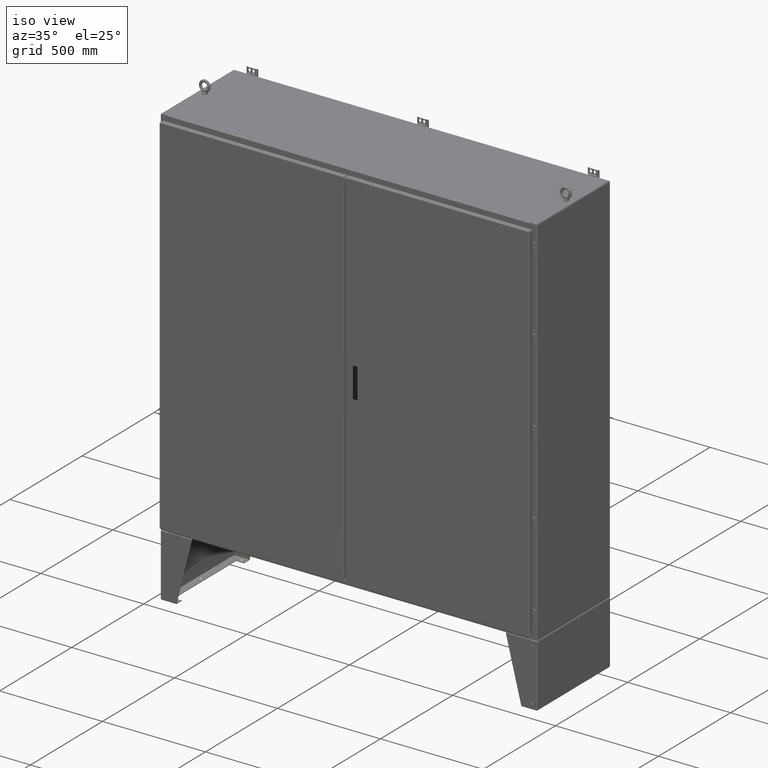
[diagram: clean part render]
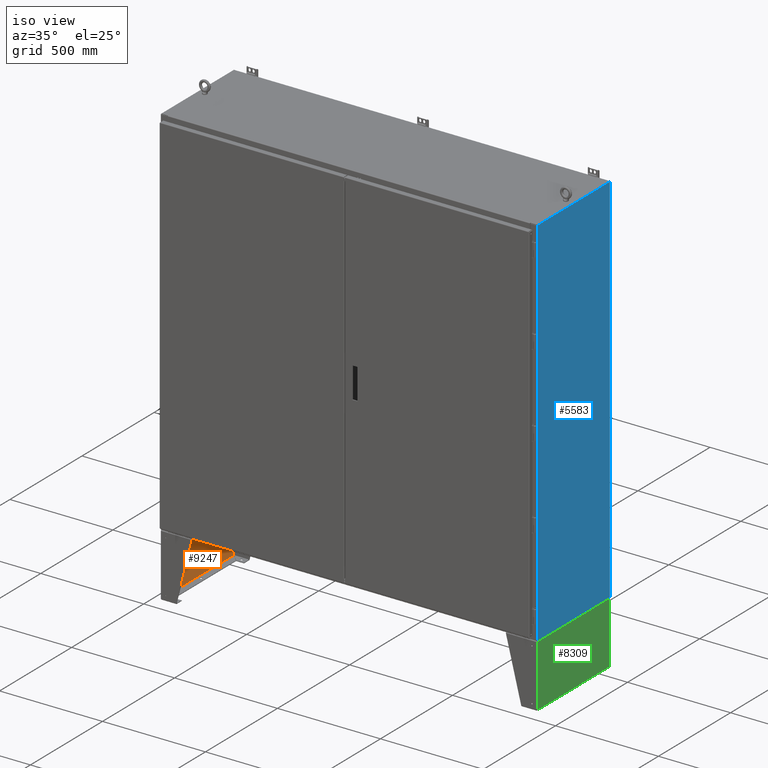
[diagram: same view with three faces highlighted in distinct colors, each labeled with its STEP entity id]
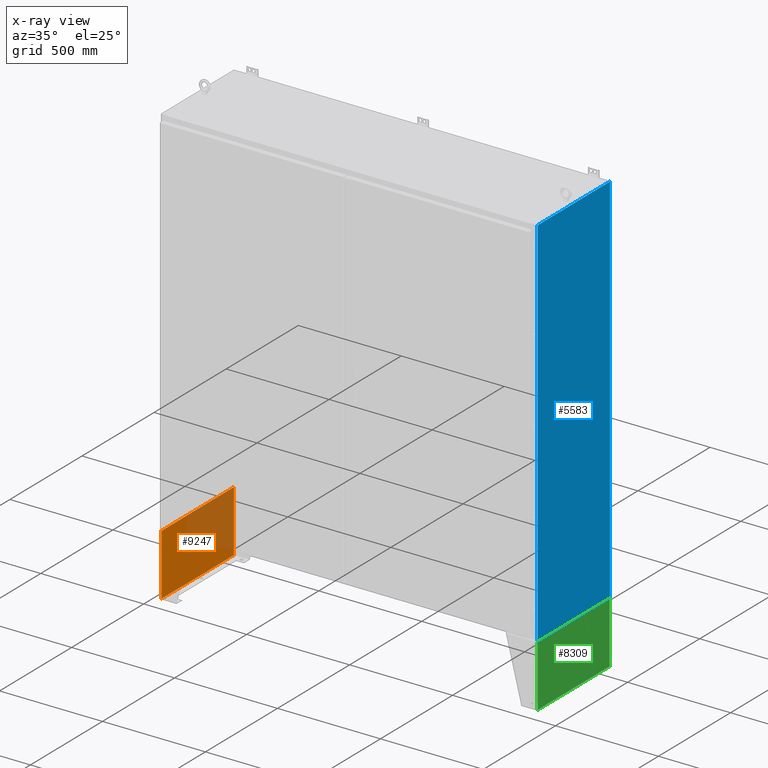
[diagram: x-ray of the same camera — body ghosted, the three highlighted faces saturated]
A machine part, iso view with three faces highlighted in distinct colors.
The next image is the same camera in x-ray (body ghosted, the three faces saturated) — at least one of them is partly hidden behind the body in this view.
Their STEP definitions:

[orange] entity #9247 — the highlighted planar face has unit normal (-1, 0, -0).
#9247 = ADVANCED_FACE( '', ( #18996 ), #18997, .F. );
#18996 = FACE_OUTER_BOUND( '', #38541, .T. );
#18997 = PLANE( '', #38542 );
#38541 = EDGE_LOOP( '', ( #69811, #69812, #69813, #69814, #69815, #69816, #69817, #69818, #69819, #69820, #69821, #69822, #69823, #69824, #69825, #69826, #69827, #69828, #69829, #69830, #69831, #69832, #69833, #69834, #69835, #69836, #69837, #69838 ) );
#38542 = AXIS2_PLACEMENT_3D( '', #69839, #69840, #69841 );
#69811 = ORIENTED_EDGE( '', *, *, #81860, .T. );
#69812 = ORIENTED_EDGE( '', *, *, #79345, .F. );
#69813 = ORIENTED_EDGE( '', *, *, #79488, .T. );
#69814 = ORIENTED_EDGE( '', *, *, #80873, .F. );
#69815 = ORIENTED_EDGE( '', *, *, #74939, .T. );
#69816 = ORIENTED_EDGE( '', *, *, #76959, .F. );
#69817 = ORIENTED_EDGE( '', *, *, #81586, .F. );
#69818 = ORIENTED_EDGE( '', *, *, #81699, .F. );
#69819 = ORIENTED_EDGE( '', *, *, #80778, .T. );
#69820 = ORIENTED_EDGE( '', *, *, #80290, .F. );
#69821 = ORIENTED_EDGE( '', *, *, #79211, .T. );
#69822 = ORIENTED_EDGE( '', *, *, #75995, .F. );
#69823 = ORIENTED_EDGE( '', *, *, #79574, .T. );
#69824 = ORIENTED_EDGE( '', *, *, #81141, .F. );
#69825 = ORIENTED_EDGE( '', *, *, #76453, .T. );
#69826 = ORIENTED_EDGE( '', *, *, #74127, .F. );
#69827 = ORIENTED_EDGE( '', *, *, #81013, .T. );
#69828 = ORIENTED_EDGE( '', *, *, #73482, .F. );
#69829 = ORIENTED_EDGE( '', *, *, #79521, .T. );
#69830 = ORIENTED_EDGE( '', *, *, #75222, .F. );
#69831 = ORIENTED_EDGE( '', *, *, #73372, .F. );
#69832 = ORIENTED_EDGE( '', *, *, #79473, .F. );
#69833 = ORIENTED_EDGE( '', *, *, #82030, .T. );
#69834 = ORIENTED_EDGE( '', *, *, #77314, .F. );
#69835 = ORIENTED_EDGE( '', *, *, #77387, .T. );
#69836 = ORIENTED_EDGE( '', *, *, #77721, .F. );
#69837 = ORIENTED_EDGE( '', *, *, #81914, .T. );
#69838 = ORIENTED_EDGE( '', *, *, #80507, .F. );
#69839 = CARTESIAN_POINT( '', ( 0.000000000000000, 2.66700000000000, 0.000000000000000 ) );
#69840 = DIRECTION( '', ( 0.000000000000000, -1.00000000000000, 0.000000000000000 ) );
#69841 = DIRECTION( '', ( 0.000000000000000, 0.000000000000000, -1.00000000000000 ) );
#73372 = EDGE_CURVE( '', #83548, #83551, #83552, .T. );
#73482 = EDGE_CURVE( '', #83739, #83741, #83742, .T. );
#74127 = EDGE_CURVE( '', #84863, #84860, #84865, .T. );
#74939 = EDGE_CURVE( '', #86225, #86229, #86231, .T. );
#75222 = EDGE_CURVE( '', #83551, #86438, #86692, .T. );
#75995 = EDGE_CURVE( '', #87946, #87949, #87950, .T. );
#76453 = EDGE_CURVE( '', #84388, #84860, #88679, .T. );
#76959 = EDGE_CURVE( '', #89442, #86229, #89444, .T. );
#77314 = EDGE_CURVE( '', #90001, #85770, #90003, .T. );
#77387 = EDGE_CURVE( '', #90001, #90112, #90114, .T. );
#77721 = EDGE_CURVE( '', #90592, #90112, #90594, .T. );
#79211 = EDGE_CURVE( '', #87435, #87949, #92738, .T. );
#79345 = EDGE_CURVE( '', #91284, #88640, #92919, .T. );
#79473 = EDGE_CURVE( '', #87773, #83548, #93086, .T. );
#79488 = EDGE_CURVE( '', #91284, #93104, #93106, .T. );
#79521 = EDGE_CURVE( '', #83739, #86438, #93152, .T. );
#79574 = EDGE_CURVE( '', #87946, #93221, #93223, .T. );
#80290 = EDGE_CURVE( '', #87435, #93896, #94144, .T. );
#80507 = EDGE_CURVE( '', #85262, #94423, #94424, .T. );
#80778 = EDGE_CURVE( '', #94751, #93896, #94753, .T. );
#80873 = EDGE_CURVE( '', #86225, #93104, #94865, .T. );
#81013 = EDGE_CURVE( '', #84863, #83741, #95024, .T. );
#81141 = EDGE_CURVE( '', #84388, #93221, #95170, .T. );
#81586 = EDGE_CURVE( '', #82769, #89442, #95699, .F. );
#81699 = EDGE_CURVE( '', #94751, #82769, #95822, .T. );
#81860 = EDGE_CURVE( '', #85262, #88640, #95997, .T. );
#81914 = EDGE_CURVE( '', #90592, #94423, #96052, .T. );
#82030 = EDGE_CURVE( '', #87773, #85770, #96174, .T. );
#82769 = VERTEX_POINT( '', #97503 );
#83548 = VERTEX_POINT( '', #99417 );
#83551 = VERTEX_POINT( '', #99429 );
#83552 = LINE( '', #99430, #99431 );
#83739 = VERTEX_POINT( '', #99761 );
#83741 = VERTEX_POINT( '', #99776 );
#83742 = LINE( '', #99777, #99778 );
#84388 = VERTEX_POINT( '', #101597 );
#84860 = VERTEX_POINT( '', #102967 );
#84863 = VERTEX_POINT( '', #102984 );
#84865 = LINE( '', #102999, #103000 );
#85262 = VERTEX_POINT( '', #104098 );
#85770 = VERTEX_POINT( '', #105535 );
#86225 = VERTEX_POINT( '', #106833 );
#86229 = VERTEX_POINT( '', #106838 );
#86231 = CIRCLE( '', #106841, 1.58750000000000 );
#86438 = VERTEX_POINT( '', #107422 );
#86692 = LINE( '', #108038, #108039 );
#87435 = VERTEX_POINT( '', #110052 );
#87773 = VERTEX_POINT( '', #110918 );
#87946 = VERTEX_POINT( '', #111306 );
#87949 = VERTEX_POINT( '', #111322 );
#87950 = LINE( '', #111323, #111324 );
#88640 = VERTEX_POINT( '', #113261 );
#88679 = CIRCLE( '', #113415, 1.58750000000000 );
#89442 = VERTEX_POINT( '', #115378 );
#89444 = LINE( '', #115380, #115381 );
#90001 = VERTEX_POINT( '', #117501 );
#90003 = LINE( '', #117516, #117517 );
#90112 = VERTEX_POINT( '', #117725 );
#90114 = CIRCLE( '', #117728, 1.58750000000000 );
#90592 = VERTEX_POINT( '', #118929 );
#90594 = LINE( '', #118944, #118945 );
#91284 = VERTEX_POINT( '', #121197 );
#92738 = CIRCLE( '', #125694, 1.58750000000000 );
#92919 = LINE( '', #126225, #126226 );
#93086 = LINE( '', #126663, #126664 );
#93104 = VERTEX_POINT( '', #126691 );
#93106 = CIRCLE( '', #126694, 1.58750000000000 );
#93152 = CIRCLE( '', #126878, 1.58750000000000 );
#93221 = VERTEX_POINT( '', #127029 );
#93223 = CIRCLE( '', #127032, 1.58750000000000 );
#93896 = VERTEX_POINT( '', #128665 );
#94144 = LINE( '', #129310, #129311 );
#94423 = VERTEX_POINT( '', #130106 );
#94424 = LINE( '', #130107, #130108 );
#94751 = VERTEX_POINT( '', #130991 );
#94753 = CIRCLE( '', #130994, 1.58750000000000 );
#94865 = LINE( '', #131329, #131330 );
#95024 = CIRCLE( '', #131789, 1.58750000000000 );
#95170 = LINE( '', #132196, #132197 );
#95699 = LINE( '', #134015, #134016 );
#95822 = LINE( '', #134232, #134233 );
#95997 = CIRCLE( '', #134571, 1.58750000000000 );
#96052 = CIRCLE( '', #134663, 1.58750000000000 );
#96174 = CIRCLE( '', #134884, 1.58750000000000 );
#97503 = CARTESIAN_POINT( '', ( 250.520200000000, 2.66700000000000, 148.920200000000 ) );
#99417 = CARTESIAN_POINT( '', ( -250.520200000000, 2.66700000000000, -148.920200000000 ) );
#99429 = CARTESIAN_POINT( '', ( 250.520200000000, 2.66700000000000, -148.920200000000 ) );
#99430 = CARTESIAN_POINT( '', ( -250.520200000000, 2.66700000000000, -148.920200000000 ) );
#99431 = VECTOR( '', #135852, 1000.00000000000 );
#99761 = CARTESIAN_POINT( '', ( 250.520200000000, 2.66700000000000, -146.695782502592 ) );
#99776 = CARTESIAN_POINT( '', ( 250.520200000000, 2.66700000000000, -142.499918163241 ) );
#99777 = CARTESIAN_POINT( '', ( 250.520200000000, 2.66700000000000, -152.400000000000 ) );
#99778 = VECTOR( '', #135934, 1000.00000000000 );
#101597 = CARTESIAN_POINT( '', ( 250.520200000000, 2.66700000000000, -133.995782502592 ) );
#102967 = CARTESIAN_POINT( '', ( 250.520200000000, 2.66700000000000, -136.149918163241 ) );
#102984 = CARTESIAN_POINT( '', ( 250.520200000000, 2.66700000000000, -140.345782502592 ) );
#102999 = CARTESIAN_POINT( '', ( 250.520200000000, 2.66700000000000, -152.400000000000 ) );
#103000 = VECTOR( '', #136383, 1000.00000000000 );
#104098 = CARTESIAN_POINT( '', ( -250.520200000000, 2.66700000000000, 133.995782502592 ) );
#105535 = CARTESIAN_POINT( '', ( -250.520200000000, 2.66700000000000, -146.695782502592 ) );
#106833 = CARTESIAN_POINT( '', ( -250.520200000000, 2.66700000000000, 146.695782502592 ) );
#106838 = CARTESIAN_POINT( '', ( -250.520200000000, 2.66700000000000, 148.849918163241 ) );
#106841 = AXIS2_PLACEMENT_3D( '', #136860, #136861, #136862 );
#107422 = CARTESIAN_POINT( '', ( 250.520200000000, 2.66700000000000, -148.849918163241 ) );
#108038 = CARTESIAN_POINT( '', ( 250.520200000000, 2.66700000000000, -152.400000000000 ) );
#108039 = VECTOR( '', #137041, 1000.00000000000 );
#110052 = CARTESIAN_POINT( '', ( 250.520200000000, 2.66700000000000, 142.499918163241 ) );
#110918 = CARTESIAN_POINT( '', ( -250.520200000000, 2.66700000000000, -148.849918163241 ) );
#111306 = CARTESIAN_POINT( '', ( 250.520200000000, 2.66700000000000, 136.149918163241 ) );
#111322 = CARTESIAN_POINT( '', ( 250.520200000000, 2.66700000000000, 140.345782502592 ) );
#111323 = CARTESIAN_POINT( '', ( 250.520200000000, 2.66700000000000, -152.400000000000 ) );
#111324 = VECTOR( '', #137473, 1000.00000000000 );
#113261 = CARTESIAN_POINT( '', ( -250.520200000000, 2.66700000000000, 136.149918163241 ) );
#113415 = AXIS2_PLACEMENT_3D( '', #137735, #137736, #137737 );
#115378 = CARTESIAN_POINT( '', ( -250.520200000000, 2.66700000000000, 148.920200000000 ) );
#115380 = CARTESIAN_POINT( '', ( -250.520200000000, 2.66700000000000, 152.400000000000 ) );
#115381 = VECTOR( '', #138054, 1000.00000000000 );
#117501 = CARTESIAN_POINT( '', ( -250.520200000000, 2.66700000000000, -142.499918163241 ) );
#117516 = CARTESIAN_POINT( '', ( -250.520200000000, 2.66700000000000, 152.400000000000 ) );
#117517 = VECTOR( '', #138136, 1000.00000000000 );
#117725 = CARTESIAN_POINT( '', ( -250.520200000000, 2.66700000000000, -140.345782502592 ) );
#117728 = AXIS2_PLACEMENT_3D( '', #138189, #138190, #138191 );
#118929 = CARTESIAN_POINT( '', ( -250.520200000000, 2.66700000000000, -136.149918163241 ) );
#118944 = CARTESIAN_POINT( '', ( -250.520200000000, 2.66700000000000, 152.400000000000 ) );
#118945 = VECTOR( '', #138409, 1000.00000000000 );
#121197 = CARTESIAN_POINT( '', ( -250.520200000000, 2.66700000000000, 140.345782502592 ) );
#125694 = AXIS2_PLACEMENT_3D( '', #139176, #139177, #139178 );
#126225 = CARTESIAN_POINT( '', ( -250.520200000000, 2.66700000000000, 152.400000000000 ) );
#126226 = VECTOR( '', #139253, 1000.00000000000 );
#126663 = CARTESIAN_POINT( '', ( -250.520200000000, 2.66700000000000, 152.400000000000 ) );
#126664 = VECTOR( '', #139309, 1000.00000000000 );
#126691 = CARTESIAN_POINT( '', ( -250.520200000000, 2.66700000000000, 142.499918163241 ) );
#126694 = AXIS2_PLACEMENT_3D( '', #139320, #139321, #139322 );
#126878 = AXIS2_PLACEMENT_3D( '', #139338, #139339, #139340 );
#127029 = CARTESIAN_POINT( '', ( 250.520200000000, 2.66700000000000, 133.995782502592 ) );
#127032 = AXIS2_PLACEMENT_3D( '', #139393, #139394, #139395 );
#128665 = CARTESIAN_POINT( '', ( 250.520200000000, 2.66700000000000, 146.695782502592 ) );
#129310 = CARTESIAN_POINT( '', ( 250.520200000000, 2.66700000000000, -152.400000000000 ) );
#129311 = VECTOR( '', #139815, 1000.00000000000 );
#130106 = CARTESIAN_POINT( '', ( -250.520200000000, 2.66700000000000, -133.995782502592 ) );
#130107 = CARTESIAN_POINT( '', ( -250.520200000000, 2.66700000000000, 152.400000000000 ) );
#130108 = VECTOR( '', #139935, 1000.00000000000 );
#130991 = CARTESIAN_POINT( '', ( 250.520200000000, 2.66700000000000, 148.849918163241 ) );
#130994 = AXIS2_PLACEMENT_3D( '', #140061, #140062, #140063 );
#131329 = CARTESIAN_POINT( '', ( -250.520200000000, 2.66700000000000, 152.400000000000 ) );
#131330 = VECTOR( '', #140107, 1000.00000000000 );
#131789 = AXIS2_PLACEMENT_3D( '', #140159, #140160, #140161 );
#132196 = CARTESIAN_POINT( '', ( 250.520200000000, 2.66700000000000, -152.400000000000 ) );
#132197 = VECTOR( '', #140213, 1000.00000000000 );
#134015 = CARTESIAN_POINT( '', ( 250.520200000000, 2.66700000000000, 148.920200000000 ) );
#134016 = VECTOR( '', #140357, 1000.00000000000 );
#134232 = CARTESIAN_POINT( '', ( 250.520200000000, 2.66700000000000, -152.400000000000 ) );
#134233 = VECTOR( '', #140401, 1000.00000000000 );
#134571 = AXIS2_PLACEMENT_3D( '', #140454, #140455, #140456 );
#134663 = AXIS2_PLACEMENT_3D( '', #140474, #140475, #140476 );
#134884 = AXIS2_PLACEMENT_3D( '', #140522, #140523, #140524 );
#135852 = DIRECTION( '', ( 1.00000000000000, 0.000000000000000, 0.000000000000000 ) );
#135934 = DIRECTION( '', ( 0.000000000000000, 0.000000000000000, 1.00000000000000 ) );
#136383 = DIRECTION( '', ( 0.000000000000000, 0.000000000000000, 1.00000000000000 ) );
#136860 = CARTESIAN_POINT( '', ( -251.686425166458, 2.66700000000000, 147.772850332916 ) );
#136861 = DIRECTION( '', ( 0.000000000000000, -1.00000000000000, 0.000000000000000 ) );
#136862 = DIRECTION( '', ( -1.00000000000000, 0.000000000000000, 0.000000000000000 ) );
#137041 = DIRECTION( '', ( 0.000000000000000, 0.000000000000000, 1.00000000000000 ) );
#137473 = DIRECTION( '', ( 0.000000000000000, 0.000000000000000, 1.00000000000000 ) );
#137735 = CARTESIAN_POINT( '', ( 251.686425166458, 2.66700000000000, -135.072850332916 ) );
#137736 = DIRECTION( '', ( 0.000000000000000, -1.00000000000000, 0.000000000000000 ) );
#137737 = DIRECTION( '', ( -1.00000000000000, 0.000000000000000, 0.000000000000000 ) );
#138054 = DIRECTION( '', ( 0.000000000000000, 0.000000000000000, -1.00000000000000 ) );
#138136 = DIRECTION( '', ( 0.000000000000000, 0.000000000000000, -1.00000000000000 ) );
#138189 = CARTESIAN_POINT( '', ( -251.686425166458, 2.66700000000000, -141.422850332916 ) );
#138190 = DIRECTION( '', ( 0.000000000000000, -1.00000000000000, 0.000000000000000 ) );
#138191 = DIRECTION( '', ( -1.00000000000000, 0.000000000000000, 0.000000000000000 ) );
#138409 = DIRECTION( '', ( 0.000000000000000, 0.000000000000000, -1.00000000000000 ) );
#139176 = CARTESIAN_POINT( '', ( 251.686425166458, 2.66700000000000, 141.422850332916 ) );
#139177 = DIRECTION( '', ( 0.000000000000000, -1.00000000000000, 0.000000000000000 ) );
#139178 = DIRECTION( '', ( -1.00000000000000, 0.000000000000000, 0.000000000000000 ) );
#139253 = DIRECTION( '', ( 0.000000000000000, 0.000000000000000, -1.00000000000000 ) );
#139309 = DIRECTION( '', ( 0.000000000000000, 0.000000000000000, -1.00000000000000 ) );
#139320 = CARTESIAN_POINT( '', ( -251.686425166458, 2.66700000000000, 141.422850332916 ) );
#139321 = DIRECTION( '', ( 0.000000000000000, -1.00000000000000, 0.000000000000000 ) );
#139322 = DIRECTION( '', ( -1.00000000000000, 0.000000000000000, 0.000000000000000 ) );
#139338 = CARTESIAN_POINT( '', ( 251.686425166458, 2.66700000000000, -147.772850332916 ) );
#139339 = DIRECTION( '', ( 0.000000000000000, -1.00000000000000, 0.000000000000000 ) );
#139340 = DIRECTION( '', ( -1.00000000000000, 0.000000000000000, 0.000000000000000 ) );
#139393 = CARTESIAN_POINT( '', ( 251.686425166458, 2.66700000000000, 135.072850332916 ) );
#139394 = DIRECTION( '', ( 0.000000000000000, -1.00000000000000, 0.000000000000000 ) );
#139395 = DIRECTION( '', ( -1.00000000000000, 0.000000000000000, 0.000000000000000 ) );
#139815 = DIRECTION( '', ( 0.000000000000000, 0.000000000000000, 1.00000000000000 ) );
#139935 = DIRECTION( '', ( 0.000000000000000, 0.000000000000000, -1.00000000000000 ) );
#140061 = CARTESIAN_POINT( '', ( 251.686425166458, 2.66700000000000, 147.772850332916 ) );
#140062 = DIRECTION( '', ( 0.000000000000000, -1.00000000000000, 0.000000000000000 ) );
#140063 = DIRECTION( '', ( -1.00000000000000, 0.000000000000000, 0.000000000000000 ) );
#140107 = DIRECTION( '', ( 0.000000000000000, 0.000000000000000, -1.00000000000000 ) );
#140159 = CARTESIAN_POINT( '', ( 251.686425166458, 2.66700000000000, -141.422850332916 ) );
#140160 = DIRECTION( '', ( 0.000000000000000, -1.00000000000000, 0.000000000000000 ) );
#140161 = DIRECTION( '', ( -1.00000000000000, 0.000000000000000, 0.000000000000000 ) );
#140213 = DIRECTION( '', ( 0.000000000000000, 0.000000000000000, 1.00000000000000 ) );
#140357 = DIRECTION( '', ( 1.00000000000000, 0.000000000000000, 0.000000000000000 ) );
#140401 = DIRECTION( '', ( 0.000000000000000, 0.000000000000000, 1.00000000000000 ) );
#140454 = CARTESIAN_POINT( '', ( -251.686425166458, 2.66700000000000, 135.072850332916 ) );
#140455 = DIRECTION( '', ( 0.000000000000000, -1.00000000000000, 0.000000000000000 ) );
#140456 = DIRECTION( '', ( -1.00000000000000, 0.000000000000000, 0.000000000000000 ) );
#140474 = CARTESIAN_POINT( '', ( -251.686425166458, 2.66700000000000, -135.072850332916 ) );
#140475 = DIRECTION( '', ( 0.000000000000000, -1.00000000000000, 0.000000000000000 ) );
#140476 = DIRECTION( '', ( -1.00000000000000, 0.000000000000000, 0.000000000000000 ) );
#140522 = CARTESIAN_POINT( '', ( -251.686425166458, 2.66700000000000, -147.772850332916 ) );
#140523 = DIRECTION( '', ( 0.000000000000000, -1.00000000000000, 0.000000000000000 ) );
#140524 = DIRECTION( '', ( -1.00000000000000, 0.000000000000000, 0.000000000000000 ) );

[blue] entity #5583 — the highlighted planar face has unit normal (1, -0, 0).
#5583 = ADVANCED_FACE( '', ( #12885 ), #12886, .T. );
#12885 = FACE_OUTER_BOUND( '', #26123, .T. );
#12886 = PLANE( '', #26124 );
#26123 = EDGE_LOOP( '', ( #49580, #49581, #49582, #49583 ) );
#26124 = AXIS2_PLACEMENT_3D( '', #49584, #49585, #49586 );
#49580 = ORIENTED_EDGE( '', *, *, #76561, .T. );
#49581 = ORIENTED_EDGE( '', *, *, #76562, .T. );
#49582 = ORIENTED_EDGE( '', *, *, #76563, .T. );
#49583 = ORIENTED_EDGE( '', *, *, #76564, .T. );
#49584 = CARTESIAN_POINT( '', ( 0.000000000000000, 0.000000000000000, 0.000000000000000 ) );
#49585 = DIRECTION( '', ( 1.00000000000000, -6.12303176911189E-017, 0.000000000000000 ) );
#49586 = DIRECTION( '', ( 6.12303176911189E-017, 1.00000000000000, 0.000000000000000 ) );
#76561 = EDGE_CURVE( '', #88843, #88844, #88845, .T. );
#76562 = EDGE_CURVE( '', #88844, #88846, #88847, .T. );
#76563 = EDGE_CURVE( '', #88846, #88848, #88849, .T. );
#76564 = EDGE_CURVE( '', #88848, #88843, #88850, .T. );
#88843 = VERTEX_POINT( '', #113848 );
#88844 = VERTEX_POINT( '', #113849 );
#88845 = LINE( '', #113850, #113851 );
#88846 = VERTEX_POINT( '', #113852 );
#88847 = LINE( '', #113853, #113854 );
#88848 = VERTEX_POINT( '', #113855 );
#88849 = LINE( '', #113856, #113857 );
#88850 = LINE( '', #113858, #113859 );
#113848 = CARTESIAN_POINT( '', ( 1.54708500649031E-014, 252.666500000000, 911.733000000000 ) );
#113849 = CARTESIAN_POINT( '', ( -1.52577808054015E-014, -249.186700000000, 911.733000000000 ) );
#113850 = CARTESIAN_POINT( '', ( 1.54708500649031E-014, 252.666500000000, 911.733000000000 ) );
#113851 = VECTOR( '', #137791, 1000.00000000000 );
#113852 = CARTESIAN_POINT( '', ( -1.52577808054015E-014, -249.186700000000, -911.733000000000 ) );
#113853 = CARTESIAN_POINT( '', ( -1.53643154351523E-014, -249.186700000000, 911.733000000000 ) );
#113854 = VECTOR( '', #137792, 1000.00000000000 );
#113855 = CARTESIAN_POINT( '', ( 1.54708500649031E-014, 252.666500000000, -911.733000000000 ) );
#113856 = CARTESIAN_POINT( '', ( -1.54708500649030E-014, -252.666500000000, -911.733000000000 ) );
#113857 = VECTOR( '', #137793, 1000.00000000000 );
#113858 = CARTESIAN_POINT( '', ( 1.54708500649031E-014, 252.666500000000, -911.733000000000 ) );
#113859 = VECTOR( '', #137794, 1000.00000000000 );
#137791 = DIRECTION( '', ( -6.12303176911189E-017, -1.00000000000000, 0.000000000000000 ) );
#137792 = DIRECTION( '', ( 0.000000000000000, 0.000000000000000, -1.00000000000000 ) );
#137793 = DIRECTION( '', ( 6.12303176911189E-017, 1.00000000000000, 0.000000000000000 ) );
#137794 = DIRECTION( '', ( -3.72802720236040E-033, -6.08853153623460E-017, 1.00000000000000 ) );

[green] entity #8309 — the highlighted planar face has unit normal (1, -0, -0).
#8309 = ADVANCED_FACE( '', ( #17343 ), #17344, .T. );
#17343 = FACE_OUTER_BOUND( '', #35492, .T. );
#17344 = PLANE( '', #35493 );
#35492 = EDGE_LOOP( '', ( #64372, #64373, #64374, #64375 ) );
#35493 = AXIS2_PLACEMENT_3D( '', #64376, #64377, #64378 );
#64372 = ORIENTED_EDGE( '', *, *, #81063, .T. );
#64373 = ORIENTED_EDGE( '', *, *, #74390, .T. );
#64374 = ORIENTED_EDGE( '', *, *, #81064, .T. );
#64375 = ORIENTED_EDGE( '', *, *, #74004, .T. );
#64376 = CARTESIAN_POINT( '', ( 0.000000000000000, 0.000000000000000, 0.000000000000000 ) );
#64377 = DIRECTION( '', ( 0.000000000000000, -1.00000000000000, 0.000000000000000 ) );
#64378 = DIRECTION( '', ( 0.000000000000000, 0.000000000000000, -1.00000000000000 ) );
#74004 = EDGE_CURVE( '', #84647, #84650, #84652, .T. );
#74390 = EDGE_CURVE( '', #85318, #82771, #85319, .T. );
#81063 = EDGE_CURVE( '', #84650, #85318, #95080, .T. );
#81064 = EDGE_CURVE( '', #82771, #84647, #95081, .T. );
#82771 = VERTEX_POINT( '', #97505 );
#84647 = VERTEX_POINT( '', #102463 );
#84650 = VERTEX_POINT( '', #102467 );
#84652 = LINE( '', #102469, #102470 );
#85318 = VERTEX_POINT( '', #104324 );
#85319 = LINE( '', #104325, #104326 );
#95080 = LINE( '', #131916, #131917 );
#95081 = LINE( '', #131918, #131919 );
#97505 = CARTESIAN_POINT( '', ( 250.520200000000, 0.000000000000000, 148.920200000000 ) );
#102463 = CARTESIAN_POINT( '', ( -250.520200000000, 0.000000000000000, 148.920200000000 ) );
#102467 = CARTESIAN_POINT( '', ( -250.520200000000, 0.000000000000000, -148.920200000000 ) );
#102469 = CARTESIAN_POINT( '', ( -250.520200000000, 0.000000000000000, 152.400000000000 ) );
#102470 = VECTOR( '', #136310, 1000.00000000000 );
#104324 = CARTESIAN_POINT( '', ( 250.520200000000, 0.000000000000000, -148.920200000000 ) );
#104325 = CARTESIAN_POINT( '', ( 250.520200000000, 0.000000000000000, -152.400000000000 ) );
#104326 = VECTOR( '', #136543, 1000.00000000000 );
#131916 = CARTESIAN_POINT( '', ( 250.520200000000, 0.000000000000000, -148.920200000000 ) );
#131917 = VECTOR( '', #140181, 1000.00000000000 );
#131918 = CARTESIAN_POINT( '', ( -250.520200000000, 0.000000000000000, 148.920200000000 ) );
#131919 = VECTOR( '', #140182, 1000.00000000000 );
#136310 = DIRECTION( '', ( 0.000000000000000, 0.000000000000000, -1.00000000000000 ) );
#136543 = DIRECTION( '', ( 0.000000000000000, 0.000000000000000, 1.00000000000000 ) );
#140181 = DIRECTION( '', ( 1.00000000000000, 0.000000000000000, 0.000000000000000 ) );
#140182 = DIRECTION( '', ( -1.00000000000000, 0.000000000000000, 0.000000000000000 ) );